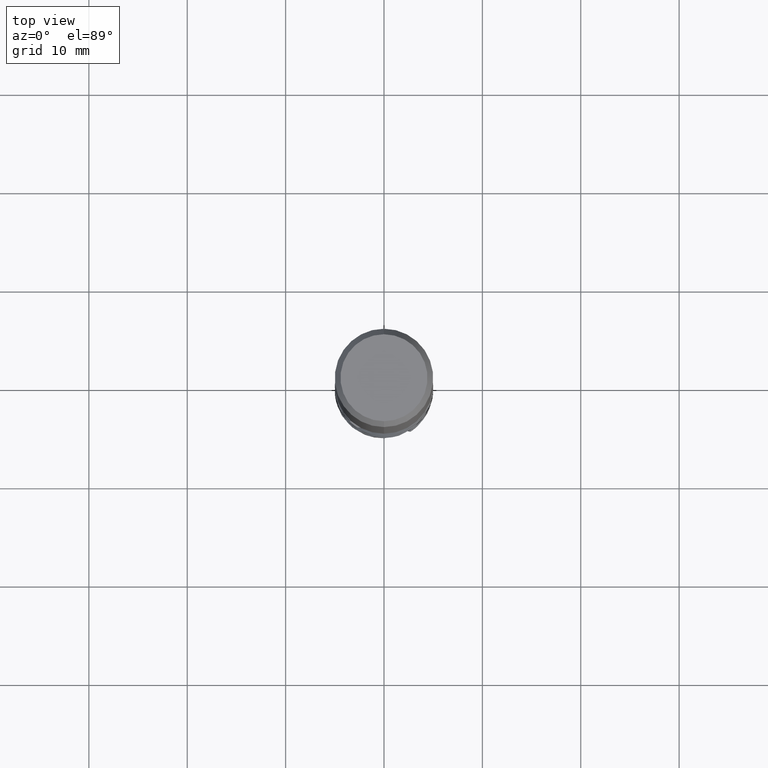
[diagram: clean part render]
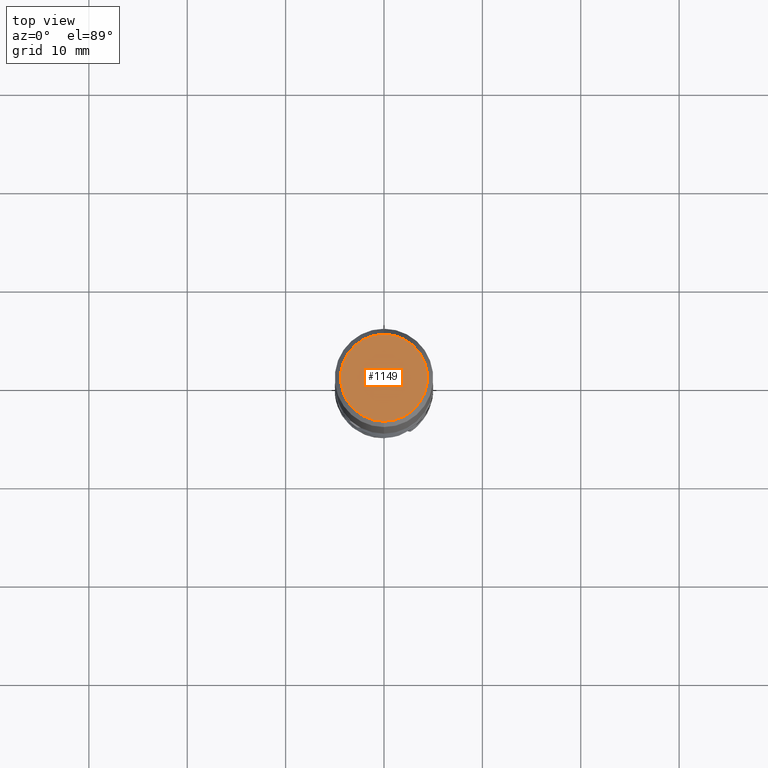
[diagram: same view with one face highlighted and labeled with its STEP entity id]
A machine part, top view. The second image highlights one B-rep face of the part: STEP entity #1149.
In plain terms, the highlighted planar face has unit normal (-0, 0, 1).
Its self-contained STEP definition (entity closure, byte-faithful):
#815=VERTEX_POINT('',#1747);
#873=EDGE_CURVE('',#815,#937,#1811,.T.);
#903=EDGE_CURVE('',#937,#815,#1845,.T.);
#937=VERTEX_POINT('',#1882);
#1149=ADVANCED_FACE('',(#2114),#2115,.T.);
#1747=CARTESIAN_POINT('',(5.41600496108121E-016,-4.42264973081037,0.0));
#1811=CIRCLE('',#5536,4.42264973081037);
#1845=CIRCLE('',#5634,4.42264973081037);
#1882=CARTESIAN_POINT('',(0.0,4.42264973081037,0.0));
#2114=FACE_OUTER_BOUND('',#7339,.T.);
#2115=PLANE('',#7340);
#5536=AXIS2_PLACEMENT_3D('',#9882,#9883,#9884);
#5634=AXIS2_PLACEMENT_3D('',#9938,#9939,#9940);
#7339=EDGE_LOOP('',(#10253,#10254));
#7340=AXIS2_PLACEMENT_3D('',#10255,#10256,#10257);
#9882=CARTESIAN_POINT('',(0.0,0.0,0.0));
#9883=DIRECTION('',(0.0,0.0,-1.0));
#9884=DIRECTION('',(0.0,1.0,0.0));
#9938=CARTESIAN_POINT('',(0.0,0.0,0.0));
#9939=DIRECTION('',(0.0,0.0,-1.0));
#9940=DIRECTION('',(0.0,1.0,0.0));
#10253=ORIENTED_EDGE('',*,*,#903,.F.);
#10254=ORIENTED_EDGE('',*,*,#873,.F.);
#10255=CARTESIAN_POINT('',(0.0,2.21132486540519,0.0));
#10256=DIRECTION('',(-0.0,0.0,1.0));
#10257=DIRECTION('',(0.0,-1.0,0.0));